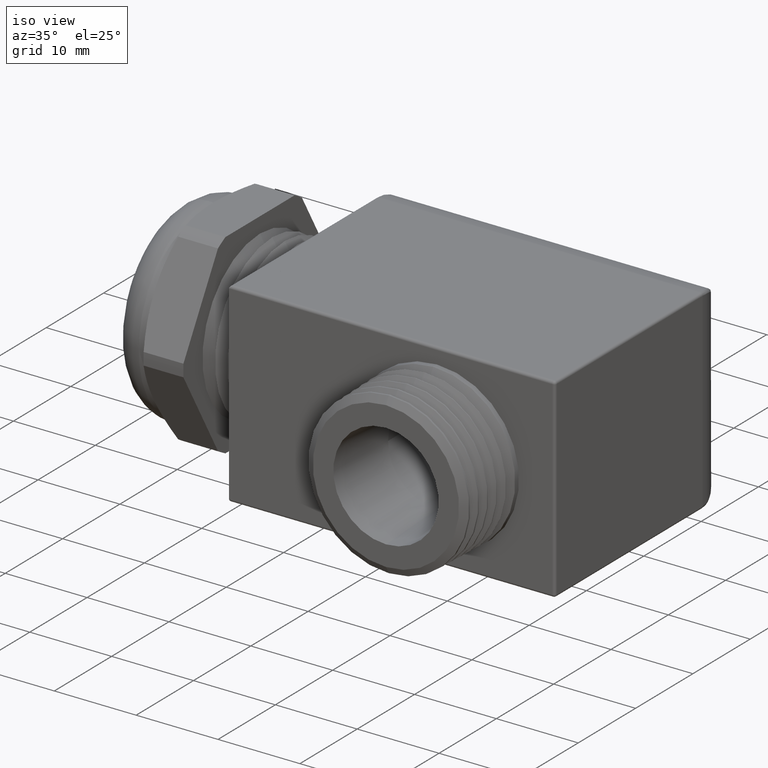
[diagram: clean part render]
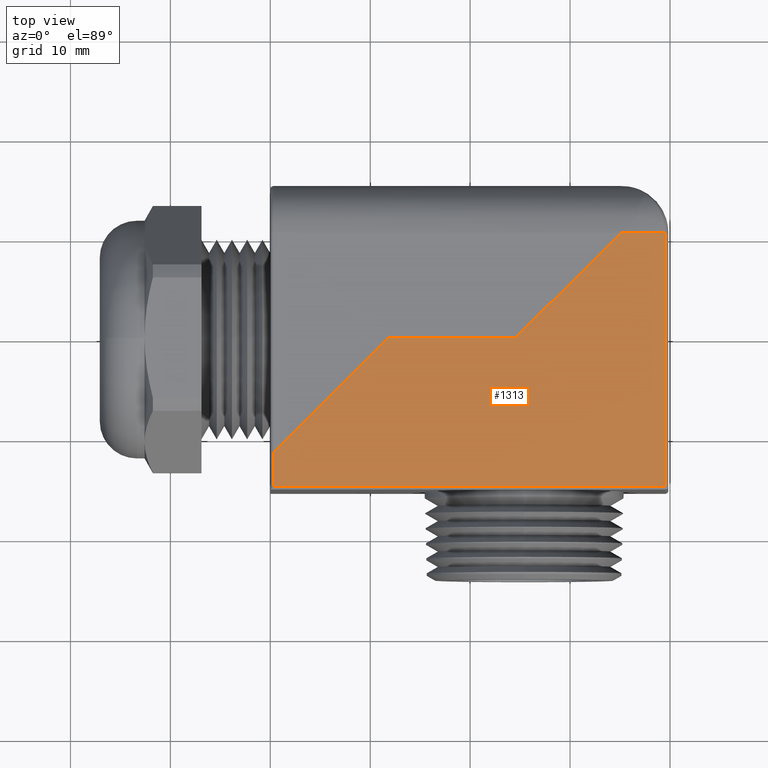
[diagram: tour spotlight — one face highlighted and labeled with its STEP entity id]
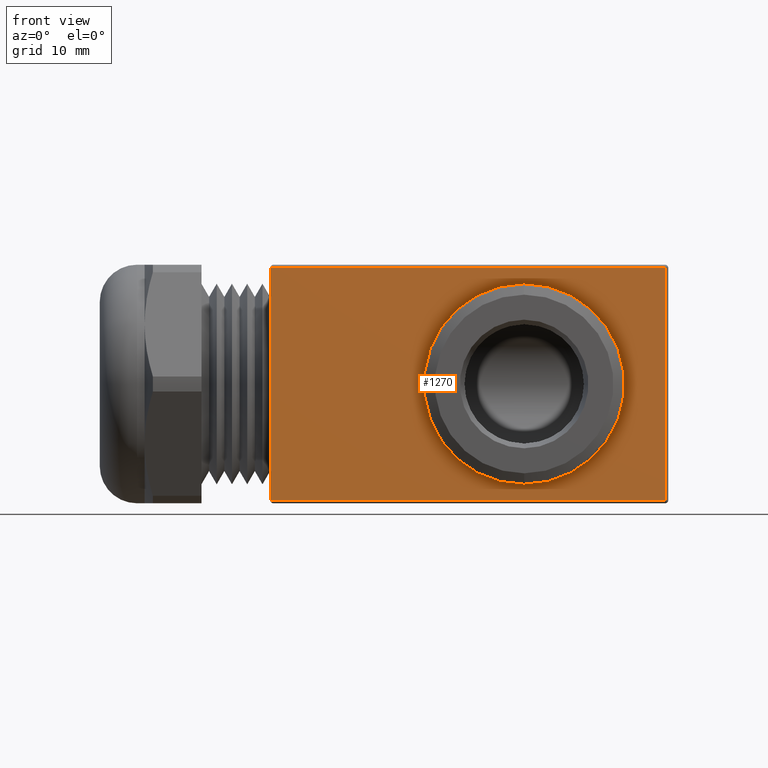
[diagram: tour spotlight — one face highlighted and labeled with its STEP entity id]
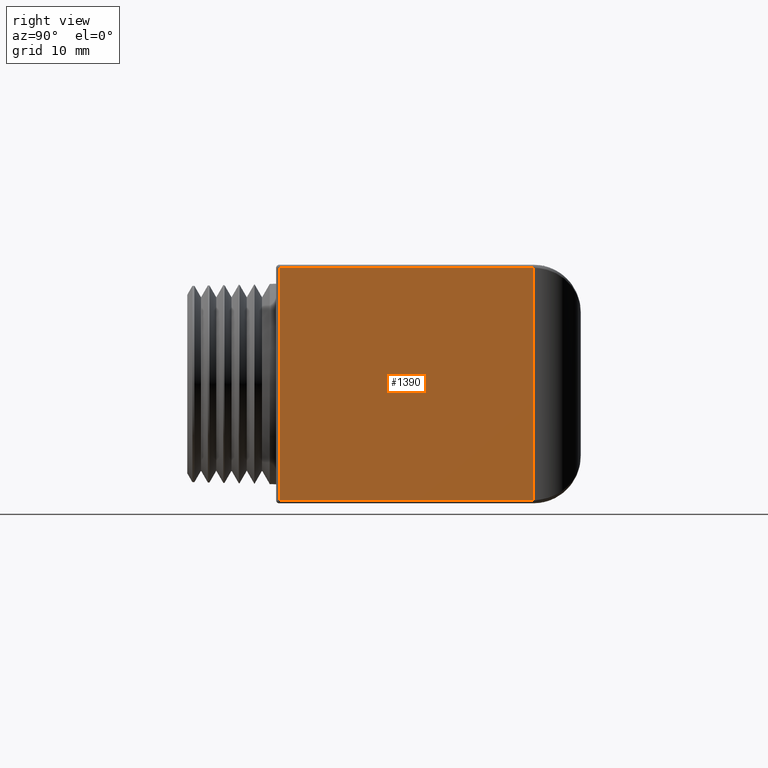
[diagram: tour spotlight — one face highlighted and labeled with its STEP entity id]
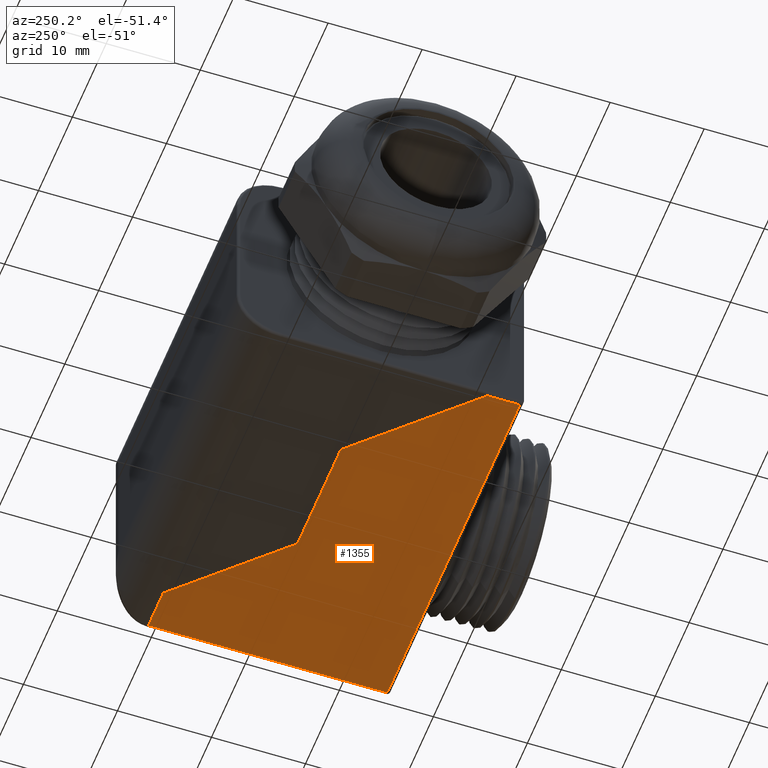
[diagram: tour spotlight — one face highlighted and labeled with its STEP entity id]
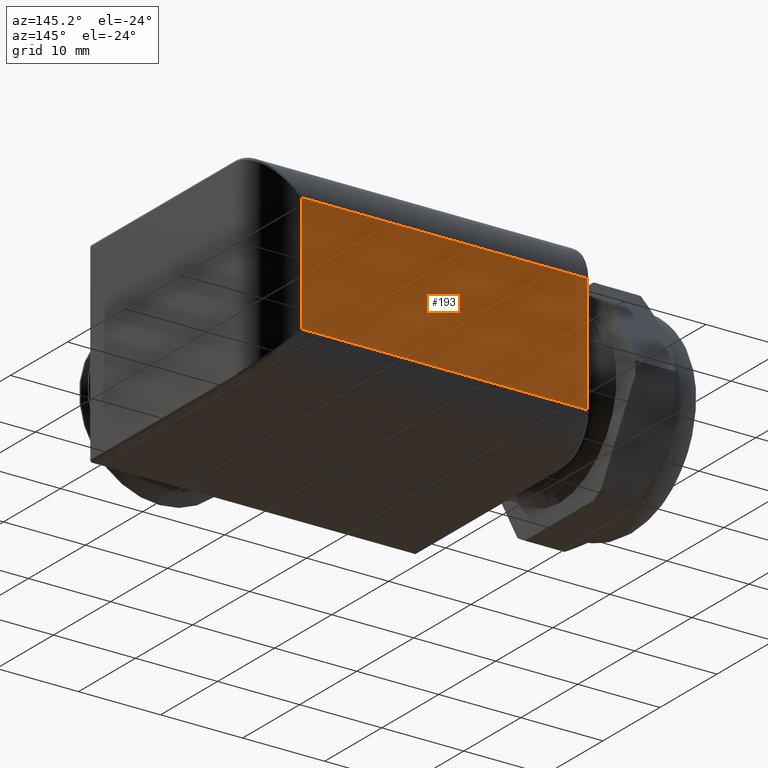
[diagram: tour spotlight — one face highlighted and labeled with its STEP entity id]
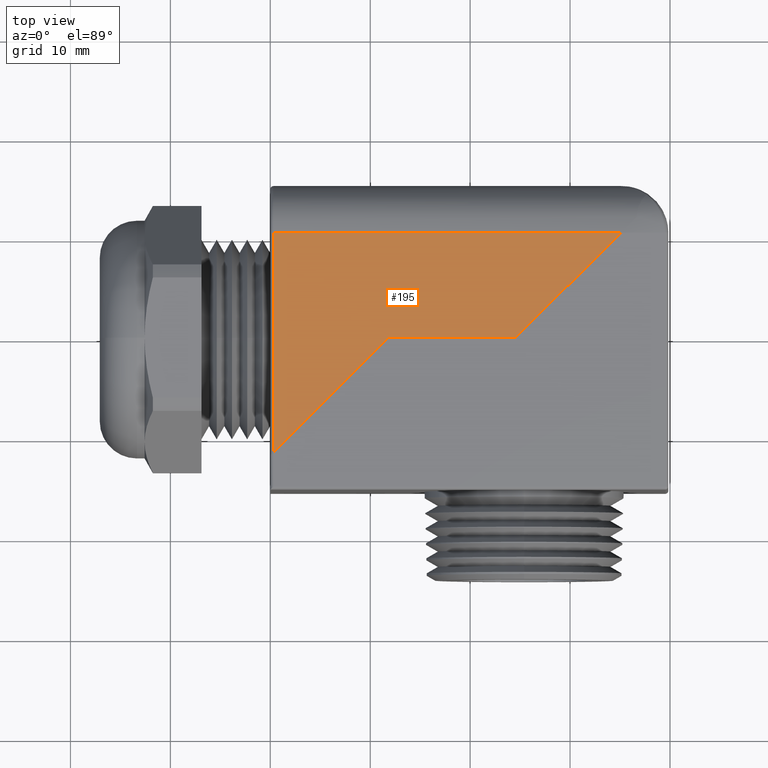
[diagram: tour spotlight — one face highlighted and labeled with its STEP entity id]
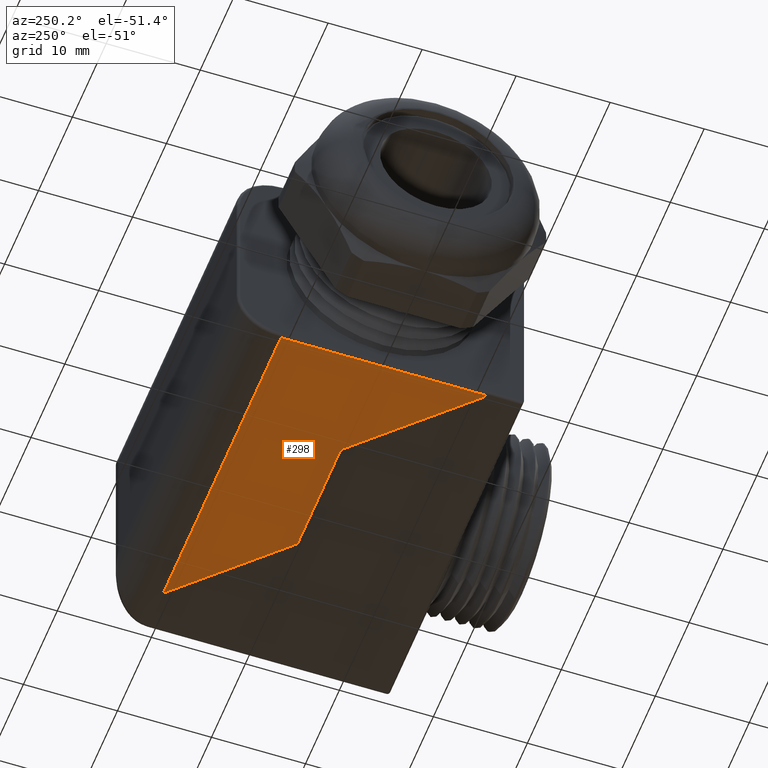
[diagram: tour spotlight — one face highlighted and labeled with its STEP entity id]
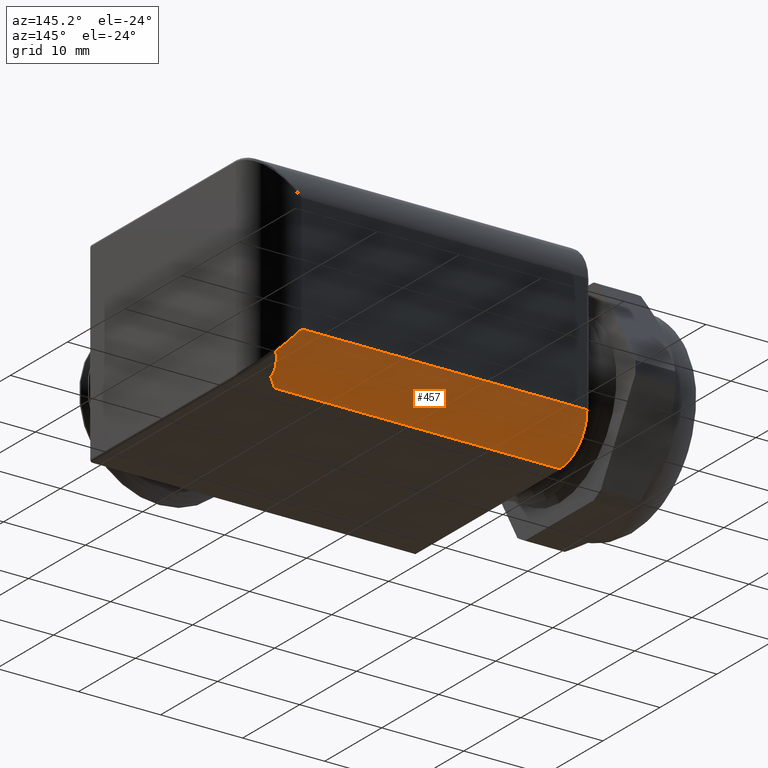
[diagram: tour spotlight — one face highlighted and labeled with its STEP entity id]
A machine part: a face-by-face anatomy tour. The part has 151 B-rep faces; the first image is the clean iso view, then the 8 largest visible faces are spotlighted one at a time (largest first), each with its STEP entity span.

Face 1 — top view, entity #1313. In plain terms, the highlighted planar face has unit normal (0, 0, -1).
Definition (entity closure, byte-faithful):
#1126 = VERTEX_POINT ( 'NONE', #3736 ) ;
#1128 = EDGE_CURVE ( 'NONE', #1126, #1129, #3587, .T. ) ;
#1129 = VERTEX_POINT ( 'NONE', #3706 ) ;
#1145 = VERTEX_POINT ( 'NONE', #3690 ) ;
#1162 = VERTEX_POINT ( 'NONE', #3695 ) ;
#1164 = EDGE_CURVE ( 'NONE', #1162, #1145, #3694, .T. ) ;
#1204 = EDGE_CURVE ( 'NONE', #1216, #1129, #3652, .T. ) ;
#1215 = EDGE_CURVE ( 'NONE', #1377, #1216, #3837, .T. ) ;
#1216 = VERTEX_POINT ( 'NONE', #3861 ) ;
#1217 = ORIENTED_EDGE ( 'NONE', *, *, #1204, .T. ) ;
#1224 = ORIENTED_EDGE ( 'NONE', *, *, #1215, .T. ) ;
#1279 = EDGE_CURVE ( 'NONE', #1145, #1126, #3793, .T. ) ;
#1313 = ADVANCED_FACE ( 'NONE', ( #3820 ), #3826, .F. ) ;
#1314 = EDGE_LOOP ( 'NONE', ( #1315, #1316, #1317, #1318, #1320, #1224, #1217 ) ) ;
#1315 = ORIENTED_EDGE ( 'NONE', *, *, #1128, .F. ) ;
#1316 = ORIENTED_EDGE ( 'NONE', *, *, #1279, .F. ) ;
#1317 = ORIENTED_EDGE ( 'NONE', *, *, #1164, .F. ) ;
#1318 = ORIENTED_EDGE ( 'NONE', *, *, #1319, .T. ) ;
#1319 = EDGE_CURVE ( 'NONE', #1162, #1328, #3782, .T. ) ;
#1320 = ORIENTED_EDGE ( 'NONE', *, *, #1345, .T. ) ;
#1328 = VERTEX_POINT ( 'NONE', #4057 ) ;
#1345 = EDGE_CURVE ( 'NONE', #1328, #1377, #4133, .T. ) ;
#1377 = VERTEX_POINT ( 'NONE', #4089 ) ;
#3587 = LINE ( 'NONE', #3709, #3708 ) ;
#3623 = DIRECTION ( 'NONE',  ( 0.7071067811865512400, 0.7071067811865438000, 0.0000000000000000000 ) ) ;
#3633 = VECTOR ( 'NONE', #3623, 39.37007874015748100 ) ;
#3634 = CARTESIAN_POINT ( 'NONE',  ( 0.9668369820585440700, 0.5028369820585433200, 0.4699999999999999200 ) ) ;
#3646 = DIRECTION ( 'NONE',  ( -1.000000000000000000, 0.0000000000000000000, 0.0000000000000000000 ) ) ;
#3647 = VECTOR ( 'NONE', #3646, 39.37007874015748100 ) ;
#3648 = CARTESIAN_POINT ( 'NONE',  ( 1.232614984114216700, 0.4133333333333332700, 0.4699999999999999200 ) ) ;
#3652 = LINE ( 'NONE', #3648, #3647 ) ;
#3690 = CARTESIAN_POINT ( 'NONE',  ( 0.4639999999999954700, 0.0000000000000000000, 0.4699999999999999200 ) ) ;
#3694 = LINE ( 'NONE', #3634, #3633 ) ;
#3695 = CARTESIAN_POINT ( 'NONE',  ( 0.01265536723163842100, -0.4513446327683522400, 0.4699999999999999200 ) ) ;
#3706 = CARTESIAN_POINT ( 'NONE',  ( 1.381333333333332900, 0.4133333333333332700, 0.4699999999999999200 ) ) ;
#3707 = DIRECTION ( 'NONE',  ( 0.7071067811865509000, 0.7071067811865441300, 0.0000000000000000000 ) ) ;
#3708 = VECTOR ( 'NONE', #3707, 39.37007874015748100 ) ;
#3709 = CARTESIAN_POINT ( 'NONE',  ( 1.218836982058541400, 0.2508369820585433200, 0.4699999999999999200 ) ) ;
#3736 = CARTESIAN_POINT ( 'NONE',  ( 0.9679999999999955300, -6.137788176939979800E-018, 0.4699999999999999200 ) ) ;
#3779 = DIRECTION ( 'NONE',  ( 0.0000000000000000000, -1.000000000000000000, 0.0000000000000000000 ) ) ;
#3780 = VECTOR ( 'NONE', #3779, 39.37007874015748100 ) ;
#3781 = CARTESIAN_POINT ( 'NONE',  ( 0.01265536723163842100, 0.2370589800028679000, 0.4699999999999999200 ) ) ;
#3782 = LINE ( 'NONE', #3781, #3780 ) ;
#3783 = DIRECTION ( 'NONE',  ( -1.000000000000000000, 0.0000000000000000000, 0.0000000000000000000 ) ) ;
#3784 = DIRECTION ( 'NONE',  ( 0.0000000000000000000, 0.0000000000000000000, -1.000000000000000000 ) ) ;
#3785 = CARTESIAN_POINT ( 'NONE',  ( 1.232614984114216700, 0.2370589800028679000, 0.4699999999999999200 ) ) ;
#3786 = AXIS2_PLACEMENT_3D ( 'NONE', #3785, #3784, #3783 ) ;
#3790 = DIRECTION ( 'NONE',  ( 1.000000000000000000, 2.319516484482452200E-017, 0.0000000000000000000 ) ) ;
#3791 = VECTOR ( 'NONE', #3790, 39.37007874015748100 ) ;
#3792 = CARTESIAN_POINT ( 'NONE',  ( 1.232614984114216700, 0.0000000000000000000, 0.4699999999999999200 ) ) ;
#3793 = LINE ( 'NONE', #3792, #3791 ) ;
#3820 = FACE_OUTER_BOUND ( 'NONE', #1314, .T. ) ;
#3826 = PLANE ( 'NONE',  #3786 ) ;
#3837 = LINE ( 'NONE', #3864, #3863 ) ;
#3861 = CARTESIAN_POINT ( 'NONE',  ( 1.555344632768361800, 0.4133333333333332700, 0.4699999999999999200 ) ) ;
#3862 = DIRECTION ( 'NONE',  ( -6.829619984160659000E-016, 1.000000000000000000, 0.0000000000000000000 ) ) ;
#3863 = VECTOR ( 'NONE', #3862, 39.37007874015748100 ) ;
#3864 = CARTESIAN_POINT ( 'NONE',  ( 1.555344632768361800, 0.4133333333333333300, 0.4699999999999999200 ) ) ;
#4057 = CARTESIAN_POINT ( 'NONE',  ( 0.01265536723163841900, -0.5873446327683619100, 0.4699999999999999200 ) ) ;
#4089 = CARTESIAN_POINT ( 'NONE',  ( 1.555344632768362700, -0.5873446327683616900, 0.4699999999999999200 ) ) ;
#4130 = DIRECTION ( 'NONE',  ( 1.000000000000000000, 1.306687496969512800E-016, 0.0000000000000000000 ) ) ;
#4131 = VECTOR ( 'NONE', #4130, 39.37007874015748100 ) ;
#4132 = CARTESIAN_POINT ( 'NONE',  ( 1.568000000000000900, -0.5873446327683616900, 0.4699999999999999200 ) ) ;
#4133 = LINE ( 'NONE', #4132, #4131 ) ;

Face 2 — front view, entity #1270. In plain terms, the highlighted planar face has unit normal (0, -1, 0).
Definition (entity closure, byte-faithful):
#997 = EDGE_CURVE ( 'NONE', #1364, #998, #3429, .T. ) ;
#998 = VERTEX_POINT ( 'NONE', #3424 ) ;
#1116 = EDGE_CURVE ( 'NONE', #998, #1364, #3497, .T. ) ;
#1270 = ADVANCED_FACE ( 'NONE', ( #3771, #3770 ), #3768, .T. ) ;
#1271 = EDGE_LOOP ( 'NONE', ( #1272, #1379 ) ) ;
#1272 = ORIENTED_EDGE ( 'NONE', *, *, #1116, .F. ) ;
#1341 = VERTEX_POINT ( 'NONE', #4134 ) ;
#1364 = VERTEX_POINT ( 'NONE', #4116 ) ;
#1366 = EDGE_CURVE ( 'NONE', #1367, #1341, #4115, .T. ) ;
#1367 = VERTEX_POINT ( 'NONE', #4111 ) ;
#1379 = ORIENTED_EDGE ( 'NONE', *, *, #997, .F. ) ;
#1380 = EDGE_LOOP ( 'NONE', ( #1381, #1385, #1387, #1388 ) ) ;
#1381 = ORIENTED_EDGE ( 'NONE', *, *, #1382, .F. ) ;
#1382 = EDGE_CURVE ( 'NONE', #1383, #1384, #4088, .T. ) ;
#1383 = VERTEX_POINT ( 'NONE', #4084 ) ;
#1384 = VERTEX_POINT ( 'NONE', #4083 ) ;
#1385 = ORIENTED_EDGE ( 'NONE', *, *, #1386, .T. ) ;
#1386 = EDGE_CURVE ( 'NONE', #1383, #1367, #4082, .T. ) ;
#1387 = ORIENTED_EDGE ( 'NONE', *, *, #1366, .T. ) ;
#1388 = ORIENTED_EDGE ( 'NONE', *, *, #1389, .T. ) ;
#1389 = EDGE_CURVE ( 'NONE', #1341, #1384, #4078, .T. ) ;
#3424 = CARTESIAN_POINT ( 'NONE',  ( 1.000155367231638600, -0.6000000000000002000, 0.3949999999999999100 ) ) ;
#3425 = DIRECTION ( 'NONE',  ( 1.000000000000000000, 1.729017717509027700E-016, 0.0000000000000000000 ) ) ;
#3426 = DIRECTION ( 'NONE',  ( 1.306687496969512800E-016, -1.000000000000000000, 0.0000000000000000000 ) ) ;
#3427 = CARTESIAN_POINT ( 'NONE',  ( 1.000155367231638600, -0.6000000000000002000, -2.785979454945908300E-017 ) ) ;
#3428 = AXIS2_PLACEMENT_3D ( 'NONE', #3427, #3426, #3425 ) ;
#3429 = CIRCLE ( 'NONE', #3428, 0.3949999999999999100 ) ;
#3481 = DIRECTION ( 'NONE',  ( 1.000000000000000000, 1.729017717509027700E-016, 0.0000000000000000000 ) ) ;
#3482 = DIRECTION ( 'NONE',  ( 1.306687496969512800E-016, -1.000000000000000000, 0.0000000000000000000 ) ) ;
#3495 = CARTESIAN_POINT ( 'NONE',  ( 1.000155367231638600, -0.6000000000000002000, -2.785979454945908300E-017 ) ) ;
#3496 = AXIS2_PLACEMENT_3D ( 'NONE', #3495, #3482, #3481 ) ;
#3497 = CIRCLE ( 'NONE', #3496, 0.3949999999999999100 ) ;
#3764 = DIRECTION ( 'NONE',  ( 1.000000000000000000, 1.306687496969512800E-016, 0.0000000000000000000 ) ) ;
#3765 = DIRECTION ( 'NONE',  ( 1.306687496969512800E-016, -1.000000000000000000, 0.0000000000000000000 ) ) ;
#3766 = CARTESIAN_POINT ( 'NONE',  ( 1.568000000000000900, -0.6000000000000000900, -2.444493352736342400 ) ) ;
#3767 = AXIS2_PLACEMENT_3D ( 'NONE', #3766, #3765, #3764 ) ;
#3768 = PLANE ( 'NONE',  #3767 ) ;
#3770 = FACE_OUTER_BOUND ( 'NONE', #1380, .T. ) ;
#3771 = FACE_BOUND ( 'NONE', #1271, .T. ) ;
#4075 = DIRECTION ( 'NONE',  ( -1.000000000000000000, -1.306687496969512800E-016, 0.0000000000000000000 ) ) ;
#4076 = VECTOR ( 'NONE', #4075, 39.37007874015748100 ) ;
#4077 = CARTESIAN_POINT ( 'NONE',  ( 1.653661013113959600E-018, -0.6000000000000003100, 0.4573446327683616300 ) ) ;
#4078 = LINE ( 'NONE', #4077, #4076 ) ;
#4079 = DIRECTION ( 'NONE',  ( 1.000000000000000000, 1.306687496969512800E-016, 0.0000000000000000000 ) ) ;
#4080 = VECTOR ( 'NONE', #4079, 39.37007874015748100 ) ;
#4081 = CARTESIAN_POINT ( 'NONE',  ( 1.568000000000000900, -0.6000000000000000900, -0.4573446327683616300 ) ) ;
#4082 = LINE ( 'NONE', #4081, #4080 ) ;
#4083 = CARTESIAN_POINT ( 'NONE',  ( 1.665464641198552300E-017, -0.6000000000000003100, 0.4573446327683605200 ) ) ;
#4084 = CARTESIAN_POINT ( 'NONE',  ( 1.665464641198552300E-017, -0.6000000000000003100, -0.4573446327683624600 ) ) ;
#4085 = DIRECTION ( 'NONE',  ( 0.0000000000000000000, 0.0000000000000000000, 1.000000000000000000 ) ) ;
#4086 = VECTOR ( 'NONE', #4085, 39.37007874015748100 ) ;
#4087 = CARTESIAN_POINT ( 'NONE',  ( 1.665464641198552300E-017, -0.6000000000000003100, -2.444493352736342400 ) ) ;
#4088 = LINE ( 'NONE', #4087, #4086 ) ;
#4111 = CARTESIAN_POINT ( 'NONE',  ( 1.555344632768362700, -0.6000000000000000900, -0.4573446327683616300 ) ) ;
#4112 = DIRECTION ( 'NONE',  ( 0.0000000000000000000, 0.0000000000000000000, 1.000000000000000000 ) ) ;
#4113 = VECTOR ( 'NONE', #4112, 39.37007874015748100 ) ;
#4114 = CARTESIAN_POINT ( 'NONE',  ( 1.555344632768362700, -0.6000000000000000900, -2.444493352736342400 ) ) ;
#4115 = LINE ( 'NONE', #4114, #4113 ) ;
#4116 = CARTESIAN_POINT ( 'NONE',  ( 1.000155367231638600, -0.6000000000000002000, -0.3949999999999999100 ) ) ;
#4134 = CARTESIAN_POINT ( 'NONE',  ( 1.555344632768362700, -0.6000000000000000900, 0.4573446327683616300 ) ) ;

Face 3 — right view, entity #1390. In plain terms, the highlighted planar face has unit normal (1, 0, 0).
Definition (entity closure, byte-faithful):
#1340 = VERTEX_POINT ( 'NONE', #4135 ) ;
#1370 = VERTEX_POINT ( 'NONE', #4105 ) ;
#1372 = EDGE_CURVE ( 'NONE', #1340, #1370, #4104, .T. ) ;
#1390 = ADVANCED_FACE ( 'NONE', ( #4074 ), #4073, .T. ) ;
#1391 = EDGE_LOOP ( 'NONE', ( #1392, #1393, #1396, #1399 ) ) ;
#1392 = ORIENTED_EDGE ( 'NONE', *, *, #1372, .T. ) ;
#1393 = ORIENTED_EDGE ( 'NONE', *, *, #1394, .T. ) ;
#1394 = EDGE_CURVE ( 'NONE', #1370, #1395, #4068, .T. ) ;
#1395 = VERTEX_POINT ( 'NONE', #4064 ) ;
#1396 = ORIENTED_EDGE ( 'NONE', *, *, #1397, .T. ) ;
#1397 = EDGE_CURVE ( 'NONE', #1395, #1398, #4063, .T. ) ;
#1398 = VERTEX_POINT ( 'NONE', #4059 ) ;
#1399 = ORIENTED_EDGE ( 'NONE', *, *, #1400, .T. ) ;
#1400 = EDGE_CURVE ( 'NONE', #1398, #1340, #4036, .T. ) ;
#4033 = DIRECTION ( 'NONE',  ( 6.829619984160659000E-016, -1.000000000000000000, 0.0000000000000000000 ) ) ;
#4034 = VECTOR ( 'NONE', #4033, 39.37007874015748100 ) ;
#4035 = CARTESIAN_POINT ( 'NONE',  ( 1.568000000000000900, -0.6000000000000002000, 0.4573446327683616300 ) ) ;
#4036 = LINE ( 'NONE', #4035, #4034 ) ;
#4059 = CARTESIAN_POINT ( 'NONE',  ( 1.568000000000000100, 0.4133333333333333900, 0.4573446327683616300 ) ) ;
#4060 = DIRECTION ( 'NONE',  ( 0.0000000000000000000, 0.0000000000000000000, 1.000000000000000000 ) ) ;
#4061 = VECTOR ( 'NONE', #4060, 39.37007874015748100 ) ;
#4062 = CARTESIAN_POINT ( 'NONE',  ( 1.568000000000000100, 0.4133333333333333900, 0.4699999999999999200 ) ) ;
#4063 = LINE ( 'NONE', #4062, #4061 ) ;
#4064 = CARTESIAN_POINT ( 'NONE',  ( 1.568000000000000100, 0.4133333333333333900, -0.4573446327683616300 ) ) ;
#4065 = DIRECTION ( 'NONE',  ( -6.829619984160659000E-016, 1.000000000000000000, 0.0000000000000000000 ) ) ;
#4066 = VECTOR ( 'NONE', #4065, 39.37007874015748100 ) ;
#4067 = CARTESIAN_POINT ( 'NONE',  ( 1.568000000000000100, 0.4133333333333335000, -0.4573446327683616300 ) ) ;
#4068 = LINE ( 'NONE', #4067, #4066 ) ;
#4069 = DIRECTION ( 'NONE',  ( -6.829619984160659000E-016, 1.000000000000000000, 0.0000000000000000000 ) ) ;
#4070 = DIRECTION ( 'NONE',  ( 1.000000000000000000, 6.829619984160659000E-016, 0.0000000000000000000 ) ) ;
#4071 = CARTESIAN_POINT ( 'NONE',  ( 1.568000000000000100, 0.5999999999999998700, -2.444493352736342400 ) ) ;
#4072 = AXIS2_PLACEMENT_3D ( 'NONE', #4071, #4070, #4069 ) ;
#4073 = PLANE ( 'NONE',  #4072 ) ;
#4074 = FACE_OUTER_BOUND ( 'NONE', #1391, .T. ) ;
#4101 = DIRECTION ( 'NONE',  ( 0.0000000000000000000, 0.0000000000000000000, -1.000000000000000000 ) ) ;
#4102 = VECTOR ( 'NONE', #4101, 39.37007874015748100 ) ;
#4103 = CARTESIAN_POINT ( 'NONE',  ( 1.568000000000000900, -0.5873446327683615700, -2.444493352736342400 ) ) ;
#4104 = LINE ( 'NONE', #4103, #4102 ) ;
#4105 = CARTESIAN_POINT ( 'NONE',  ( 1.568000000000000900, -0.5873446327683616900, -0.4573446327683616300 ) ) ;
#4135 = CARTESIAN_POINT ( 'NONE',  ( 1.568000000000000900, -0.5873446327683616900, 0.4573446327683616300 ) ) ;

Face 4 — auxiliary view, entity #1355. In plain terms, the highlighted planar face has unit normal (0, 0, 1).
Definition (entity closure, byte-faithful):
#1107 = VERTEX_POINT ( 'NONE', #3485 ) ;
#1109 = EDGE_CURVE ( 'NONE', #1107, #1110, #3484, .T. ) ;
#1110 = VERTEX_POINT ( 'NONE', #3523 ) ;
#1121 = VERTEX_POINT ( 'NONE', #3470 ) ;
#1138 = VERTEX_POINT ( 'NONE', #3717 ) ;
#1140 = EDGE_CURVE ( 'NONE', #1138, #1121, #3662, .T. ) ;
#1171 = EDGE_CURVE ( 'NONE', #1121, #1107, #3616, .T. ) ;
#1225 = ORIENTED_EDGE ( 'NONE', *, *, #1109, .F. ) ;
#1226 = ORIENTED_EDGE ( 'NONE', *, *, #1171, .F. ) ;
#1267 = VERTEX_POINT ( 'NONE', #3885 ) ;
#1330 = ORIENTED_EDGE ( 'NONE', *, *, #1140, .F. ) ;
#1331 = ORIENTED_EDGE ( 'NONE', *, *, #1332, .T. ) ;
#1332 = EDGE_CURVE ( 'NONE', #1138, #1333, #4056, .T. ) ;
#1333 = VERTEX_POINT ( 'NONE', #4047 ) ;
#1334 = ORIENTED_EDGE ( 'NONE', *, *, #1335, .T. ) ;
#1335 = EDGE_CURVE ( 'NONE', #1333, #1267, #4046, .T. ) ;
#1336 = ORIENTED_EDGE ( 'NONE', *, *, #1352, .T. ) ;
#1337 = ORIENTED_EDGE ( 'NONE', *, *, #1338, .T. ) ;
#1338 = EDGE_CURVE ( 'NONE', #1350, #1110, #4042, .T. ) ;
#1350 = VERTEX_POINT ( 'NONE', #4122 ) ;
#1352 = EDGE_CURVE ( 'NONE', #1267, #1350, #4121, .T. ) ;
#1355 = ADVANCED_FACE ( 'NONE', ( #3998 ), #3997, .F. ) ;
#1356 = EDGE_LOOP ( 'NONE', ( #1330, #1331, #1334, #1336, #1337, #1225, #1226 ) ) ;
#3470 = CARTESIAN_POINT ( 'NONE',  ( 0.9679999999999955300, -6.137788176939979800E-018, -0.4700000000000000300 ) ) ;
#3483 = CARTESIAN_POINT ( 'NONE',  ( 0.7297780020556763300, 0.2657780020556780300, -0.4700000000000000300 ) ) ;
#3484 = LINE ( 'NONE', #3483, #3525 ) ;
#3485 = CARTESIAN_POINT ( 'NONE',  ( 0.4639999999999954700, -3.414809992080329000E-017, -0.4700000000000000300 ) ) ;
#3523 = CARTESIAN_POINT ( 'NONE',  ( 0.01265536723163842100, -0.4513446327683522900, -0.4700000000000000300 ) ) ;
#3524 = DIRECTION ( 'NONE',  ( -0.7071067811865512400, -0.7071067811865438000, 0.0000000000000000000 ) ) ;
#3525 = VECTOR ( 'NONE', #3524, 39.37007874015748100 ) ;
#3613 = DIRECTION ( 'NONE',  ( -1.000000000000000000, -2.319516484482452200E-017, 0.0000000000000000000 ) ) ;
#3614 = VECTOR ( 'NONE', #3613, 39.37007874015748100 ) ;
#3615 = CARTESIAN_POINT ( 'NONE',  ( 1.232614984114216700, 0.0000000000000000000, -0.4700000000000000300 ) ) ;
#3616 = LINE ( 'NONE', #3615, #3614 ) ;
#3662 = LINE ( 'NONE', #3667, #3666 ) ;
#3665 = DIRECTION ( 'NONE',  ( -0.7071067811865509000, -0.7071067811865441300, 0.0000000000000000000 ) ) ;
#3666 = VECTOR ( 'NONE', #3665, 39.37007874015748100 ) ;
#3667 = CARTESIAN_POINT ( 'NONE',  ( 0.9817780020556736700, 0.01377800205567789200, -0.4700000000000000300 ) ) ;
#3717 = CARTESIAN_POINT ( 'NONE',  ( 1.381333333333332900, 0.4133333333333332200, -0.4700000000000000300 ) ) ;
#3885 = CARTESIAN_POINT ( 'NONE',  ( 1.555344632768362700, -0.5873446327683616900, -0.4700000000000000300 ) ) ;
#3993 = DIRECTION ( 'NONE',  ( 1.000000000000000000, 0.0000000000000000000, 0.0000000000000000000 ) ) ;
#3994 = DIRECTION ( 'NONE',  ( 0.0000000000000000000, 0.0000000000000000000, 1.000000000000000000 ) ) ;
#3995 = CARTESIAN_POINT ( 'NONE',  ( 1.232614984114216700, -0.2370589800028675700, -0.4700000000000000300 ) ) ;
#3996 = AXIS2_PLACEMENT_3D ( 'NONE', #3995, #3994, #3993 ) ;
#3997 = PLANE ( 'NONE',  #3996 ) ;
#3998 = FACE_OUTER_BOUND ( 'NONE', #1356, .T. ) ;
#3999 = DIRECTION ( 'NONE',  ( -1.000000000000000000, -1.306687496969512800E-016, 0.0000000000000000000 ) ) ;
#4000 = VECTOR ( 'NONE', #3999, 39.37007874015748100 ) ;
#4001 = CARTESIAN_POINT ( 'NONE',  ( 0.0000000000000000000, -0.5873446327683619100, -0.4700000000000000300 ) ) ;
#4039 = DIRECTION ( 'NONE',  ( 0.0000000000000000000, 1.000000000000000000, 0.0000000000000000000 ) ) ;
#4040 = VECTOR ( 'NONE', #4039, 39.37007874015748100 ) ;
#4041 = CARTESIAN_POINT ( 'NONE',  ( 0.01265536723163842100, -0.2370589800028675700, -0.4700000000000000300 ) ) ;
#4042 = LINE ( 'NONE', #4041, #4040 ) ;
#4043 = DIRECTION ( 'NONE',  ( 6.829619984160659000E-016, -1.000000000000000000, 0.0000000000000000000 ) ) ;
#4044 = VECTOR ( 'NONE', #4043, 39.37007874015748100 ) ;
#4045 = CARTESIAN_POINT ( 'NONE',  ( 1.555344632768362700, -0.5999999999999999800, -0.4700000000000000300 ) ) ;
#4046 = LINE ( 'NONE', #4045, #4044 ) ;
#4047 = CARTESIAN_POINT ( 'NONE',  ( 1.555344632768361800, 0.4133333333333332200, -0.4700000000000000300 ) ) ;
#4048 = DIRECTION ( 'NONE',  ( 1.000000000000000000, 0.0000000000000000000, 0.0000000000000000000 ) ) ;
#4049 = VECTOR ( 'NONE', #4048, 39.37007874015748100 ) ;
#4050 = CARTESIAN_POINT ( 'NONE',  ( 1.232614984114216700, 0.4133333333333332200, -0.4700000000000000300 ) ) ;
#4056 = LINE ( 'NONE', #4050, #4049 ) ;
#4121 = LINE ( 'NONE', #4001, #4000 ) ;
#4122 = CARTESIAN_POINT ( 'NONE',  ( 0.01265536723163842100, -0.5873446327683619100, -0.4700000000000000300 ) ) ;

Face 5 — auxiliary view, entity #193. In plain terms, the highlighted planar face has unit normal (0, -1, 0).
Definition (entity closure, byte-faithful):
#193 = ADVANCED_FACE ( 'NONE', ( #1816 ), #1815, .F. ) ;
#196 = VERTEX_POINT ( 'NONE', #1798 ) ;
#199 = VERTEX_POINT ( 'NONE', #1797 ) ;
#200 = ORIENTED_EDGE ( 'NONE', *, *, #234, .T. ) ;
#216 = VERTEX_POINT ( 'NONE', #1940 ) ;
#232 = EDGE_CURVE ( 'NONE', #286, #196, #1958, .T. ) ;
#233 = ORIENTED_EDGE ( 'NONE', *, *, #297, .T. ) ;
#234 = EDGE_CURVE ( 'NONE', #196, #216, #1971, .T. ) ;
#258 = EDGE_CURVE ( 'NONE', #216, #199, #2114, .T. ) ;
#275 = ORIENTED_EDGE ( 'NONE', *, *, #232, .T. ) ;
#281 = ORIENTED_EDGE ( 'NONE', *, *, #258, .T. ) ;
#284 = EDGE_LOOP ( 'NONE', ( #233, #275, #200, #281 ) ) ;
#286 = VERTEX_POINT ( 'NONE', #2012 ) ;
#297 = EDGE_CURVE ( 'NONE', #199, #286, #2091, .T. ) ;
#1797 = CARTESIAN_POINT ( 'NONE',  ( 1.381333333333333300, 0.5999999999999999800, -0.2833333333333333800 ) ) ;
#1798 = CARTESIAN_POINT ( 'NONE',  ( 0.01265536723163841900, 0.5999999999999999800, 0.2833333333333332100 ) ) ;
#1811 = DIRECTION ( 'NONE',  ( 0.0000000000000000000, 0.0000000000000000000, -1.000000000000000000 ) ) ;
#1812 = DIRECTION ( 'NONE',  ( 0.0000000000000000000, -1.000000000000000000, 0.0000000000000000000 ) ) ;
#1813 = CARTESIAN_POINT ( 'NONE',  ( 0.0000000000000000000, 0.5999999999999999800, 2.364919523357121200 ) ) ;
#1814 = AXIS2_PLACEMENT_3D ( 'NONE', #1813, #1812, #1811 ) ;
#1815 = PLANE ( 'NONE',  #1814 ) ;
#1816 = FACE_OUTER_BOUND ( 'NONE', #284, .T. ) ;
#1940 = CARTESIAN_POINT ( 'NONE',  ( 1.381333333333333300, 0.5999999999999999800, 0.2833333333333332100 ) ) ;
#1952 = DIRECTION ( 'NONE',  ( 0.0000000000000000000, 0.0000000000000000000, 1.000000000000000000 ) ) ;
#1953 = VECTOR ( 'NONE', #1952, 39.37007874015748100 ) ;
#1954 = CARTESIAN_POINT ( 'NONE',  ( 0.01265536723163841900, 0.5999999999999999800, 2.364919523357121200 ) ) ;
#1958 = LINE ( 'NONE', #1954, #1953 ) ;
#1968 = DIRECTION ( 'NONE',  ( 1.000000000000000000, 0.0000000000000000000, 0.0000000000000000000 ) ) ;
#1969 = VECTOR ( 'NONE', #1968, 39.37007874015748100 ) ;
#1970 = CARTESIAN_POINT ( 'NONE',  ( 0.0000000000000000000, 0.5999999999999999800, 0.2833333333333332100 ) ) ;
#1971 = LINE ( 'NONE', #1970, #1969 ) ;
#2012 = CARTESIAN_POINT ( 'NONE',  ( 0.01265536723163842100, 0.5999999999999999800, -0.2833333333333334900 ) ) ;
#2088 = DIRECTION ( 'NONE',  ( -1.000000000000000000, 0.0000000000000000000, 0.0000000000000000000 ) ) ;
#2089 = VECTOR ( 'NONE', #2088, 39.37007874015748100 ) ;
#2090 = CARTESIAN_POINT ( 'NONE',  ( 0.0000000000000000000, 0.5999999999999999800, -0.2833333333333334900 ) ) ;
#2091 = LINE ( 'NONE', #2090, #2089 ) ;
#2109 = DIRECTION ( 'NONE',  ( 0.0000000000000000000, 0.0000000000000000000, -1.000000000000000000 ) ) ;
#2110 = VECTOR ( 'NONE', #2109, 39.37007874015748100 ) ;
#2111 = CARTESIAN_POINT ( 'NONE',  ( 1.381333333333333300, 0.5999999999999999800, -0.4700000000000002000 ) ) ;
#2114 = LINE ( 'NONE', #2111, #2110 ) ;

Face 6 — top view, entity #195. In plain terms, the highlighted planar face has unit normal (0, 0, -1).
Definition (entity closure, byte-faithful):
#195 = ADVANCED_FACE ( 'NONE', ( #1808 ), #1803, .F. ) ;
#198 = ORIENTED_EDGE ( 'NONE', *, *, #288, .T. ) ;
#217 = ORIENTED_EDGE ( 'NONE', *, *, #626, .T. ) ;
#259 = ORIENTED_EDGE ( 'NONE', *, *, #319, .T. ) ;
#260 = ORIENTED_EDGE ( 'NONE', *, *, #340, .T. ) ;
#273 = ORIENTED_EDGE ( 'NONE', *, *, #274, .T. ) ;
#274 = EDGE_CURVE ( 'NONE', #285, #627, #2101, .T. ) ;
#285 = VERTEX_POINT ( 'NONE', #2013 ) ;
#287 = EDGE_LOOP ( 'NONE', ( #259, #260, #198, #273, #217 ) ) ;
#288 = EDGE_CURVE ( 'NONE', #323, #285, #2011, .T. ) ;
#319 = EDGE_CURVE ( 'NONE', #631, #322, #2031, .T. ) ;
#322 = VERTEX_POINT ( 'NONE', #2151 ) ;
#323 = VERTEX_POINT ( 'NONE', #2148 ) ;
#340 = EDGE_CURVE ( 'NONE', #322, #323, #1995, .T. ) ;
#626 = EDGE_CURVE ( 'NONE', #627, #631, #2697, .T. ) ;
#627 = VERTEX_POINT ( 'NONE', #2693 ) ;
#631 = VERTEX_POINT ( 'NONE', #2687 ) ;
#1799 = DIRECTION ( 'NONE',  ( -1.000000000000000000, 0.0000000000000000000, 0.0000000000000000000 ) ) ;
#1800 = DIRECTION ( 'NONE',  ( 0.0000000000000000000, 0.0000000000000000000, -1.000000000000000000 ) ) ;
#1801 = CARTESIAN_POINT ( 'NONE',  ( 1.232614984114216700, 0.2370589800028679000, 0.4699999999999999200 ) ) ;
#1802 = AXIS2_PLACEMENT_3D ( 'NONE', #1801, #1800, #1799 ) ;
#1803 = PLANE ( 'NONE',  #1802 ) ;
#1808 = FACE_OUTER_BOUND ( 'NONE', #287, .T. ) ;
#1994 = CARTESIAN_POINT ( 'NONE',  ( 1.218836982058541400, 0.2508369820585433200, 0.4699999999999999200 ) ) ;
#1995 = LINE ( 'NONE', #1994, #2059 ) ;
#2008 = DIRECTION ( 'NONE',  ( -1.000000000000000000, 0.0000000000000000000, 0.0000000000000000000 ) ) ;
#2009 = VECTOR ( 'NONE', #2008, 39.37007874015748100 ) ;
#2010 = CARTESIAN_POINT ( 'NONE',  ( 1.232614984114216700, 0.4133333333333332700, 0.4699999999999999200 ) ) ;
#2011 = LINE ( 'NONE', #2010, #2009 ) ;
#2013 = CARTESIAN_POINT ( 'NONE',  ( 0.01265536723163842100, 0.4133333333333332700, 0.4699999999999999200 ) ) ;
#2028 = DIRECTION ( 'NONE',  ( 1.000000000000000000, 2.319516484482452200E-017, 0.0000000000000000000 ) ) ;
#2029 = VECTOR ( 'NONE', #2028, 39.37007874015748100 ) ;
#2030 = CARTESIAN_POINT ( 'NONE',  ( 1.232614984114216700, 0.0000000000000000000, 0.4699999999999999200 ) ) ;
#2031 = LINE ( 'NONE', #2030, #2029 ) ;
#2058 = DIRECTION ( 'NONE',  ( 0.7071067811865509000, 0.7071067811865441300, 0.0000000000000000000 ) ) ;
#2059 = VECTOR ( 'NONE', #2058, 39.37007874015748100 ) ;
#2094 = DIRECTION ( 'NONE',  ( 0.0000000000000000000, -1.000000000000000000, 0.0000000000000000000 ) ) ;
#2095 = VECTOR ( 'NONE', #2094, 39.37007874015748100 ) ;
#2096 = CARTESIAN_POINT ( 'NONE',  ( 0.01265536723163842100, 0.2370589800028679000, 0.4699999999999999200 ) ) ;
#2101 = LINE ( 'NONE', #2096, #2095 ) ;
#2148 = CARTESIAN_POINT ( 'NONE',  ( 1.381333333333332900, 0.4133333333333332700, 0.4699999999999999200 ) ) ;
#2151 = CARTESIAN_POINT ( 'NONE',  ( 0.9679999999999955300, -6.137788176939979800E-018, 0.4699999999999999200 ) ) ;
#2687 = CARTESIAN_POINT ( 'NONE',  ( 0.4639999999999954700, 0.0000000000000000000, 0.4699999999999999200 ) ) ;
#2693 = CARTESIAN_POINT ( 'NONE',  ( 0.01265536723163842100, -0.4513446327683522400, 0.4699999999999999200 ) ) ;
#2694 = DIRECTION ( 'NONE',  ( 0.7071067811865512400, 0.7071067811865438000, 0.0000000000000000000 ) ) ;
#2695 = VECTOR ( 'NONE', #2694, 39.37007874015748100 ) ;
#2696 = CARTESIAN_POINT ( 'NONE',  ( 0.9668369820585440700, 0.5028369820585433200, 0.4699999999999999200 ) ) ;
#2697 = LINE ( 'NONE', #2696, #2695 ) ;

Face 7 — auxiliary view, entity #298. In plain terms, the highlighted planar face has unit normal (0, 0, 1).
Definition (entity closure, byte-faithful):
#201 = ORIENTED_EDGE ( 'NONE', *, *, #324, .T. ) ;
#212 = EDGE_LOOP ( 'NONE', ( #213, #289, #201, #226, #227 ) ) ;
#213 = ORIENTED_EDGE ( 'NONE', *, *, #214, .T. ) ;
#214 = EDGE_CURVE ( 'NONE', #215, #421, #1687, .T. ) ;
#215 = VERTEX_POINT ( 'NONE', #1941 ) ;
#226 = ORIENTED_EDGE ( 'NONE', *, *, #607, .T. ) ;
#227 = ORIENTED_EDGE ( 'NONE', *, *, #282, .T. ) ;
#282 = EDGE_CURVE ( 'NONE', #617, #215, #2092, .T. ) ;
#289 = ORIENTED_EDGE ( 'NONE', *, *, #419, .T. ) ;
#298 = ADVANCED_FACE ( 'NONE', ( #2087 ), #2086, .F. ) ;
#324 = EDGE_CURVE ( 'NONE', #440, #608, #2139, .T. ) ;
#419 = EDGE_CURVE ( 'NONE', #421, #440, #2189, .T. ) ;
#421 = VERTEX_POINT ( 'NONE', #2185 ) ;
#440 = VERTEX_POINT ( 'NONE', #2286 ) ;
#607 = EDGE_CURVE ( 'NONE', #608, #617, #2752, .T. ) ;
#608 = VERTEX_POINT ( 'NONE', #2748 ) ;
#617 = VERTEX_POINT ( 'NONE', #2722 ) ;
#1687 = LINE ( 'NONE', #1688, #1936 ) ;
#1688 = CARTESIAN_POINT ( 'NONE',  ( 1.232614984114216700, 0.4133333333333332200, -0.4700000000000000300 ) ) ;
#1936 = VECTOR ( 'NONE', #1937, 39.37007874015748100 ) ;
#1937 = DIRECTION ( 'NONE',  ( 1.000000000000000000, 0.0000000000000000000, 0.0000000000000000000 ) ) ;
#1941 = CARTESIAN_POINT ( 'NONE',  ( 0.01265536723163842100, 0.4133333333333332200, -0.4700000000000000300 ) ) ;
#2020 = DIRECTION ( 'NONE',  ( 0.0000000000000000000, 1.000000000000000000, 0.0000000000000000000 ) ) ;
#2021 = VECTOR ( 'NONE', #2020, 39.37007874015748100 ) ;
#2022 = CARTESIAN_POINT ( 'NONE',  ( 0.01265536723163842100, -0.2370589800028675700, -0.4700000000000000300 ) ) ;
#2082 = DIRECTION ( 'NONE',  ( 1.000000000000000000, 0.0000000000000000000, 0.0000000000000000000 ) ) ;
#2083 = DIRECTION ( 'NONE',  ( 0.0000000000000000000, 0.0000000000000000000, 1.000000000000000000 ) ) ;
#2084 = CARTESIAN_POINT ( 'NONE',  ( 1.232614984114216700, -0.2370589800028675700, -0.4700000000000000300 ) ) ;
#2085 = AXIS2_PLACEMENT_3D ( 'NONE', #2084, #2083, #2082 ) ;
#2086 = PLANE ( 'NONE',  #2085 ) ;
#2087 = FACE_OUTER_BOUND ( 'NONE', #212, .T. ) ;
#2092 = LINE ( 'NONE', #2022, #2021 ) ;
#2136 = DIRECTION ( 'NONE',  ( -1.000000000000000000, -2.319516484482452200E-017, 0.0000000000000000000 ) ) ;
#2137 = VECTOR ( 'NONE', #2136, 39.37007874015748100 ) ;
#2138 = CARTESIAN_POINT ( 'NONE',  ( 1.232614984114216700, 0.0000000000000000000, -0.4700000000000000300 ) ) ;
#2139 = LINE ( 'NONE', #2138, #2137 ) ;
#2185 = CARTESIAN_POINT ( 'NONE',  ( 1.381333333333332900, 0.4133333333333332200, -0.4700000000000000300 ) ) ;
#2186 = DIRECTION ( 'NONE',  ( -0.7071067811865509000, -0.7071067811865441300, 0.0000000000000000000 ) ) ;
#2187 = VECTOR ( 'NONE', #2186, 39.37007874015748100 ) ;
#2188 = CARTESIAN_POINT ( 'NONE',  ( 0.9817780020556736700, 0.01377800205567789200, -0.4700000000000000300 ) ) ;
#2189 = LINE ( 'NONE', #2188, #2187 ) ;
#2286 = CARTESIAN_POINT ( 'NONE',  ( 0.9679999999999955300, -6.137788176939979800E-018, -0.4700000000000000300 ) ) ;
#2722 = CARTESIAN_POINT ( 'NONE',  ( 0.01265536723163842100, -0.4513446327683522900, -0.4700000000000000300 ) ) ;
#2748 = CARTESIAN_POINT ( 'NONE',  ( 0.4639999999999954700, -3.414809992080329000E-017, -0.4700000000000000300 ) ) ;
#2749 = DIRECTION ( 'NONE',  ( -0.7071067811865512400, -0.7071067811865438000, 0.0000000000000000000 ) ) ;
#2750 = VECTOR ( 'NONE', #2749, 39.37007874015748100 ) ;
#2751 = CARTESIAN_POINT ( 'NONE',  ( 0.7297780020556763300, 0.2657780020556780300, -0.4700000000000000300 ) ) ;
#2752 = LINE ( 'NONE', #2751, #2750 ) ;

Face 8 — auxiliary view, entity #457. In plain terms, the highlighted cylindrical surface (partial cylindrical patch) has radius 4.7413 mm, axis along (1, 0, 0).
Definition (entity closure, byte-faithful):
#199 = VERTEX_POINT ( 'NONE', #1797 ) ;
#214 = EDGE_CURVE ( 'NONE', #215, #421, #1687, .T. ) ;
#215 = VERTEX_POINT ( 'NONE', #1941 ) ;
#286 = VERTEX_POINT ( 'NONE', #2012 ) ;
#297 = EDGE_CURVE ( 'NONE', #199, #286, #2091, .T. ) ;
#332 = EDGE_CURVE ( 'NONE', #381, #359, #2125, .T. ) ;
#359 = VERTEX_POINT ( 'NONE', #2306 ) ;
#381 = VERTEX_POINT ( 'NONE', #2251 ) ;
#397 = EDGE_LOOP ( 'NONE', ( #483, #401, #400, #455, #456, #482 ) ) ;
#400 = ORIENTED_EDGE ( 'NONE', *, *, #214, .F. ) ;
#401 = ORIENTED_EDGE ( 'NONE', *, *, #437, .F. ) ;
#421 = VERTEX_POINT ( 'NONE', #2185 ) ;
#427 = EDGE_CURVE ( 'NONE', #215, #286, #2177, .T. ) ;
#429 = EDGE_CURVE ( 'NONE', #199, #359, #2323, .T. ) ;
#437 = EDGE_CURVE ( 'NONE', #421, #381, #2210, .T. ) ;
#455 = ORIENTED_EDGE ( 'NONE', *, *, #427, .T. ) ;
#456 = ORIENTED_EDGE ( 'NONE', *, *, #297, .F. ) ;
#457 = ADVANCED_FACE ( 'NONE', ( #2417 ), #2534, .T. ) ;
#482 = ORIENTED_EDGE ( 'NONE', *, *, #429, .T. ) ;
#483 = ORIENTED_EDGE ( 'NONE', *, *, #332, .F. ) ;
#1687 = LINE ( 'NONE', #1688, #1936 ) ;
#1688 = CARTESIAN_POINT ( 'NONE',  ( 1.232614984114216700, 0.4133333333333332200, -0.4700000000000000300 ) ) ;
#1797 = CARTESIAN_POINT ( 'NONE',  ( 1.381333333333333300, 0.5999999999999999800, -0.2833333333333333800 ) ) ;
#1936 = VECTOR ( 'NONE', #1937, 39.37007874015748100 ) ;
#1937 = DIRECTION ( 'NONE',  ( 1.000000000000000000, 0.0000000000000000000, 0.0000000000000000000 ) ) ;
#1941 = CARTESIAN_POINT ( 'NONE',  ( 0.01265536723163842100, 0.4133333333333332200, -0.4700000000000000300 ) ) ;
#2000 = CARTESIAN_POINT ( 'NONE',  ( 1.482052933150984400, 0.5655528969226056900, -0.3913779949559043600 ) ) ;
#2001 = CARTESIAN_POINT ( 'NONE',  ( 1.476809190397160700, 0.5605451455584420400, -0.3984332044939694600 ) ) ;
#2002 = CARTESIAN_POINT ( 'NONE',  ( 1.471851295572975200, 0.5549455399629581500, -0.4052944807674759300 ) ) ;
#2003 = CARTESIAN_POINT ( 'NONE',  ( 1.462684942637073200, 0.5423094444298862700, -0.4185875433098579800 ) ) ;
#2012 = CARTESIAN_POINT ( 'NONE',  ( 0.01265536723163842100, 0.5999999999999999800, -0.2833333333333334900 ) ) ;
#2088 = DIRECTION ( 'NONE',  ( -1.000000000000000000, 0.0000000000000000000, 0.0000000000000000000 ) ) ;
#2089 = VECTOR ( 'NONE', #2088, 39.37007874015748100 ) ;
#2090 = CARTESIAN_POINT ( 'NONE',  ( 0.0000000000000000000, 0.5999999999999999800, -0.2833333333333334900 ) ) ;
#2091 = LINE ( 'NONE', #2090, #2089 ) ;
#2115 = CARTESIAN_POINT ( 'NONE',  ( 1.458577991040629600, 0.5354051246965522100, -0.4248736885612224300 ) ) ;
#2116 = CARTESIAN_POINT ( 'NONE',  ( 1.451606072875320400, 0.5203618129261764500, -0.4365655067196905800 ) ) ;
#2117 = CARTESIAN_POINT ( 'NONE',  ( 1.448703389176503500, 0.5121062989118641000, -0.4420434044432357500 ) ) ;
#2118 = CARTESIAN_POINT ( 'NONE',  ( 1.444681853025261200, 0.4945364096087356800, -0.4517110212979184600 ) ) ;
#2119 = CARTESIAN_POINT ( 'NONE',  ( 1.443555555555555700, 0.4852440504394008300, -0.4558989542127226400 ) ) ;
#2120 = CARTESIAN_POINT ( 'NONE',  ( 1.443555555555555700, 0.4755555555555555100, -0.4593243544286518300 ) ) ;
#2125 = B_SPLINE_CURVE_WITH_KNOTS ( 'NONE', 3,
 ( #2120, #2119, #2118, #2117, #2116, #2115, #2003, #2002, #2001, #2000 ),
 .UNSPECIFIED., .F., .F.,
 ( 4, 2, 2, 2, 4 ),
 ( 0.01657161964365462900, 0.01733837700108231700, 0.01810513435851000100, 0.01887189171593768900, 0.01963864907336537700 ),
 .UNSPECIFIED. ) ;
#2174 = DIRECTION ( 'NONE',  ( 0.0000000000000000000, 0.0000000000000000000, -1.000000000000000000 ) ) ;
#2175 = DIRECTION ( 'NONE',  ( 1.000000000000000000, 0.0000000000000000000, 0.0000000000000000000 ) ) ;
#2176 = AXIS2_PLACEMENT_3D ( 'NONE', #2182, #2175, #2174 ) ;
#2177 = CIRCLE ( 'NONE', #2176, 0.1866666666666666800 ) ;
#2182 = CARTESIAN_POINT ( 'NONE',  ( 0.01265536723163842100, 0.4133333333333332200, -0.2833333333333333800 ) ) ;
#2185 = CARTESIAN_POINT ( 'NONE',  ( 1.381333333333332900, 0.4133333333333332200, -0.4700000000000000300 ) ) ;
#2210 =( BOUNDED_CURVE ( )  B_SPLINE_CURVE ( 3, ( #2294, #2293, #2292, #2291 ),
 .UNSPECIFIED., .F., .T. ) 
 B_SPLINE_CURVE_WITH_KNOTS ( ( 4, 4 ),
 ( 4.712388980384689700, 5.052225889838812400 ),
 .UNSPECIFIED. ) 
 CURVE ( )  GEOMETRIC_REPRESENTATION_ITEM ( )  RATIONAL_B_SPLINE_CURVE ( ( 1.000000000000000000, 0.9903990397689925700, 0.9903990397689925700, 1.000000000000000000 ) ) 
 REPRESENTATION_ITEM ( '' )  );
#2251 = CARTESIAN_POINT ( 'NONE',  ( 1.443555555555555700, 0.4755555555555555100, -0.4593243544286518300 ) ) ;
#2291 = CARTESIAN_POINT ( 'NONE',  ( 1.443555555555555700, 0.4755555555555555100, -0.4593243544286518300 ) ) ;
#2292 = CARTESIAN_POINT ( 'NONE',  ( 1.423522936573932800, 0.4555229365739327800, -0.4664069547920677800 ) ) ;
#2293 = CARTESIAN_POINT ( 'NONE',  ( 1.402581134423580800, 0.4345811344235808700, -0.4700000000000000300 ) ) ;
#2294 = CARTESIAN_POINT ( 'NONE',  ( 1.381333333333332900, 0.4133333333333332200, -0.4700000000000000300 ) ) ;
#2306 = CARTESIAN_POINT ( 'NONE',  ( 1.482052933150984400, 0.5655528969226056900, -0.3913779949559043600 ) ) ;
#2319 = CARTESIAN_POINT ( 'NONE',  ( 1.482052933150984400, 0.5655528969226056900, -0.3913779949559043600 ) ) ;
#2320 = CARTESIAN_POINT ( 'NONE',  ( 1.452382869104805700, 0.5881441669779279300, -0.3595501080700041500 ) ) ;
#2321 = CARTESIAN_POINT ( 'NONE',  ( 1.417717696976831000, 0.5999999999999998700, -0.3223638325145399300 ) ) ;
#2322 = CARTESIAN_POINT ( 'NONE',  ( 1.381333333333333300, 0.5999999999999999800, -0.2833333333333333800 ) ) ;
#2323 =( BOUNDED_CURVE ( )  B_SPLINE_CURVE ( 3, ( #2322, #2321, #2320, #2319 ),
 .UNSPECIFIED., .F., .T. ) 
 B_SPLINE_CURVE_WITH_KNOTS ( ( 4, 4 ),
 ( 4.712388980384689700, 5.329658462089862600 ),
 .UNSPECIFIED. ) 
 CURVE ( )  GEOMETRIC_REPRESENTATION_ITEM ( )  RATIONAL_B_SPLINE_CURVE ( ( 1.000000000000000000, 0.9684994442050701700, 0.9684994442050701700, 1.000000000000000000 ) ) 
 REPRESENTATION_ITEM ( '' )  );
#2417 = FACE_OUTER_BOUND ( 'NONE', #397, .T. ) ;
#2529 = DIRECTION ( 'NONE',  ( 0.0000000000000000000, 0.0000000000000000000, -1.000000000000000000 ) ) ;
#2530 = DIRECTION ( 'NONE',  ( 1.000000000000000000, 0.0000000000000000000, 0.0000000000000000000 ) ) ;
#2531 = CARTESIAN_POINT ( 'NONE',  ( 1.232614984114216700, 0.4133333333333332200, -0.2833333333333333800 ) ) ;
#2532 = AXIS2_PLACEMENT_3D ( 'NONE', #2531, #2530, #2529 ) ;
#2534 = CYLINDRICAL_SURFACE ( 'NONE', #2532, 0.1866666666666666800 ) ;